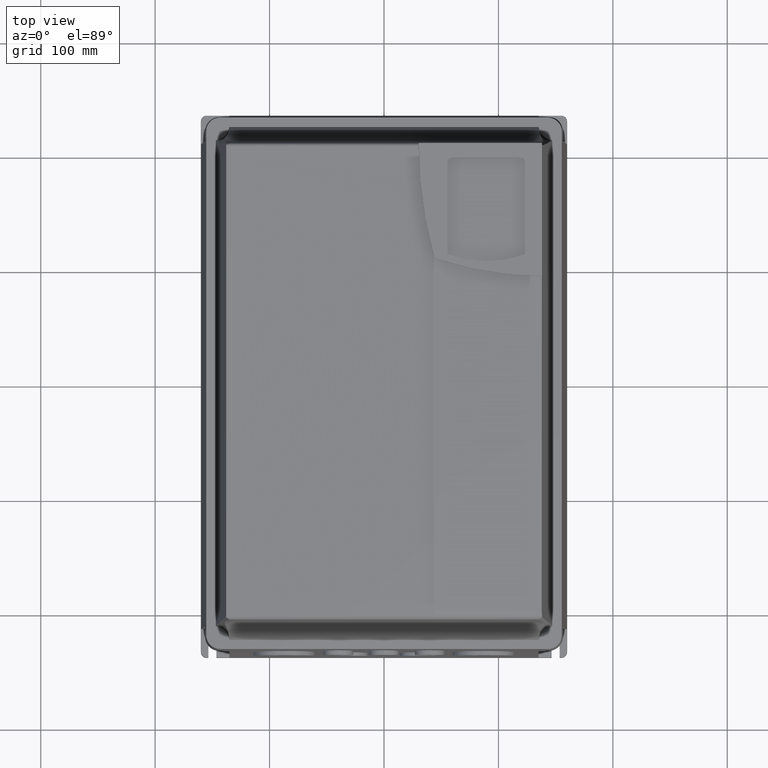
[diagram: clean part render]
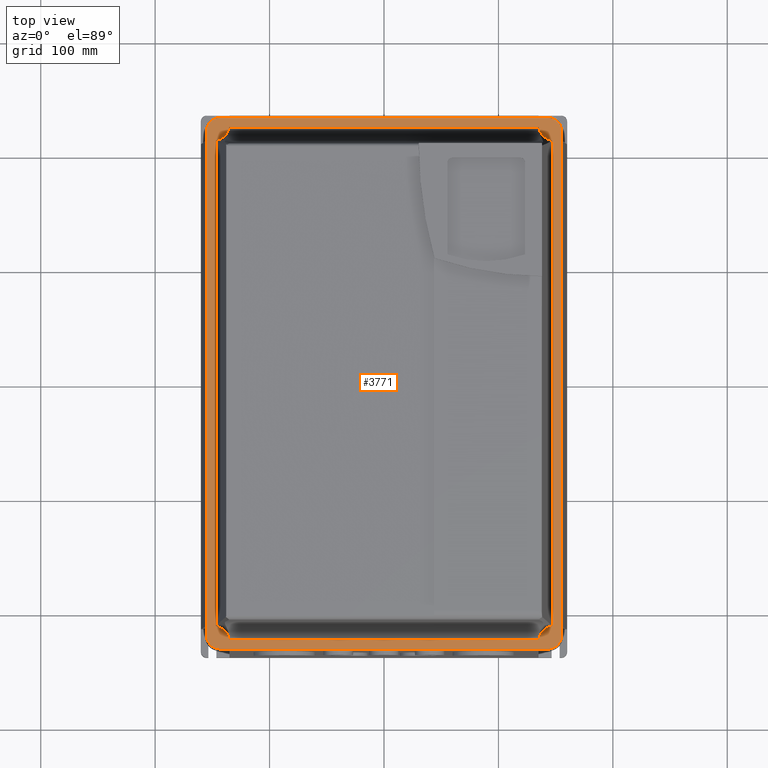
[diagram: same view with one face highlighted and labeled with its STEP entity id]
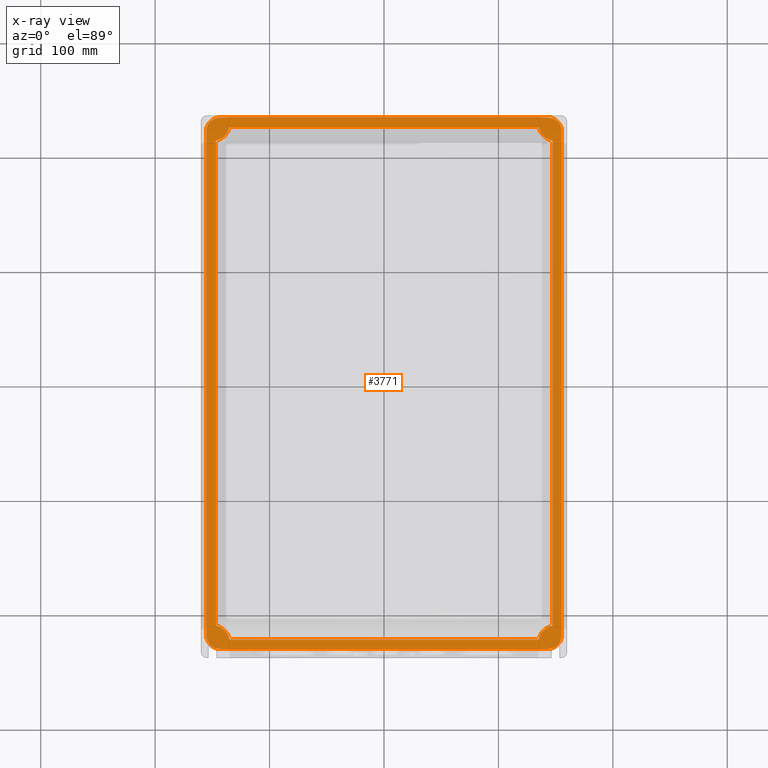
[diagram: x-ray of the same camera — body ghosted, the highlighted face saturated]
A machine part, top view. The second image highlights one B-rep face of the part: STEP entity #3771.
The next image is the same camera in x-ray: the body ghosted, the highlighted face saturated — about 0% of this face is hidden behind the body in this view.
In plain terms, the highlighted planar face has unit normal (-0, 0, -1).
Its self-contained STEP definition (entity closure, byte-faithful):
#50 = CARTESIAN_POINT ( 'NONE',  ( 5.870134323775302754, -8.898309321170588149, 7.070866141732304655 ) ) ;
#86 = PLANE ( 'NONE',  #3544 ) ;
#125 = CARTESIAN_POINT ( 'NONE',  ( -5.919603706733489012, 9.145979347624917821, 7.070866141732324195 ) ) ;
#132 = CARTESIAN_POINT ( 'NONE',  ( 6.115189488196325129, -8.671796319053838076, 7.070866141732283339 ) ) ;
#170 = CARTESIAN_POINT ( 'NONE',  ( 5.919606529659948713, -9.144077412350274159, 7.070866141732284227 ) ) ;
#255 = DIRECTION ( 'NONE',  ( -0.000000000000000000, 0.000000000000000000, -1.000000000000000000 ) ) ;
#265 = LINE ( 'NONE', #531, #3309 ) ;
#303 = CARTESIAN_POINT ( 'NONE',  ( -5.868558551732835582, 8.899348643540102799, 7.070866141732303767 ) ) ;
#357 = VECTOR ( 'NONE', #3875, 39.37007874015748143 ) ;
#387 = CARTESIAN_POINT ( 'NONE',  ( -6.115189488196325129, 8.950393057145165088, 7.070866141732324195 ) ) ;
#427 = VECTOR ( 'NONE', #2820, 39.37007874015748143 ) ;
#490 = ORIENTED_EDGE ( 'NONE', *, *, #1759, .F. ) ;
#531 = CARTESIAN_POINT ( 'NONE',  ( 5.802706648302605963, -8.824671478994547513, 7.070866141732284227 ) ) ;
#544 = ORIENTED_EDGE ( 'NONE', *, *, #3286, .F. ) ;
#550 = CARTESIAN_POINT ( 'NONE',  ( -5.783096516450406455, 8.354833402131196962, 7.070866141732313537 ) ) ;
#627 = DIRECTION ( 'NONE',  ( -0.000000000000000000, 0.000000000000000000, -1.000000000000000000 ) ) ;
#661 = ORIENTED_EDGE ( 'NONE', *, *, #720, .F. ) ;
#670 = AXIS2_PLACEMENT_3D ( 'NONE', #303, #627, #947 ) ;
#671 = ORIENTED_EDGE ( 'NONE', *, *, #1527, .F. ) ;
#720 = EDGE_CURVE ( 'NONE', #1810, #2594, #733, .T. ) ;
#733 = CIRCLE ( 'NONE', #1644, 0.5511811023622051886 ) ;
#781 = CARTESIAN_POINT ( 'NONE',  ( -5.783096516450406455, -11.81102362204724443, 7.070866141732324195 ) ) ;
#811 =( BOUNDED_CURVE ( )  B_SPLINE_CURVE ( 3, ( #3849, #2608, #3809, #3830 ),
 .UNSPECIFIED., .F., .F. ) 
 B_SPLINE_CURVE_WITH_KNOTS ( ( 4, 4 ),
 ( 2.358449336178278788, 3.928566196871626559 ),
 .UNSPECIFIED. ) 
 CURVE ( )  GEOMETRIC_REPRESENTATION_ITEM ( )  RATIONAL_B_SPLINE_CURVE ( ( 1.000000000000000000, 0.8048979786128696023, 0.8048979786128696023, 1.000000000000000000 ) ) 
 REPRESENTATION_ITEM ( '' )  );
#941 = CARTESIAN_POINT ( 'NONE',  ( 5.323439904853187521, 8.817823994351881467, 7.070866141732302879 ) ) ;
#947 = DIRECTION ( 'NONE',  ( 1.000000000000000000, 0.000000000000000000, 0.000000000000000000 ) ) ;
#955 = CARTESIAN_POINT ( 'NONE',  ( 5.802706648302605963, -11.81102362204724443, 7.070866141732284227 ) ) ;
#960 = CARTESIAN_POINT ( 'NONE',  ( 5.323894380343049626, -8.824671478994551066, 7.070866141732298438 ) ) ;
#970 = CARTESIAN_POINT ( 'NONE',  ( -6.115189488196322465, -8.948491734379379281, 7.070866141732325971 ) ) ;
#1018 = VERTEX_POINT ( 'NONE', #132 ) ;
#1030 = LINE ( 'NONE', #1688, #2916 ) ;
#1046 = DIRECTION ( 'NONE',  ( 0.000000000000000000, 1.000000000000000000, 0.000000000000000000 ) ) ;
#1057 = CIRCLE ( 'NONE', #2524, 0.5511811023622051886 ) ;
#1088 = ORIENTED_EDGE ( 'NONE', *, *, #3197, .T. ) ;
#1089 = CARTESIAN_POINT ( 'NONE',  ( -6.115189488196325129, 8.673698318070291791, 7.070866141732304655 ) ) ;
#1107 = ORIENTED_EDGE ( 'NONE', *, *, #3516, .F. ) ;
#1171 = DIRECTION ( 'NONE',  ( 1.000000000000000000, 0.000000000000000000, 0.000000000000000000 ) ) ;
#1202 = DIRECTION ( 'NONE',  ( 1.000000000000000000, -0.000000000000000000, 0.000000000000000000 ) ) ;
#1220 = VERTEX_POINT ( 'NONE', #1858 ) ;
#1222 = LINE ( 'NONE', #1562, #1247 ) ;
#1247 = VECTOR ( 'NONE', #1202, 39.37007874015748143 ) ;
#1249 = LINE ( 'NONE', #955, #427 ) ;
#1273 = CARTESIAN_POINT ( 'NONE',  ( -5.642914961523377571, -9.144077412350272382, 7.070866141732303767 ) ) ;
#1359 = LINE ( 'NONE', #2903, #357 ) ;
#1365 = CARTESIAN_POINT ( 'NONE',  ( -5.642909687761759940, 9.145979347624919598, 7.070866141732303767 ) ) ;
#1394 = EDGE_CURVE ( 'NONE', #3883, #1884, #3941, .T. ) ;
#1435 = CIRCLE ( 'NONE', #3624, 0.5511811023622051886 ) ;
#1444 = ORIENTED_EDGE ( 'NONE', *, *, #2425, .T. ) ;
#1478 = ORIENTED_EDGE ( 'NONE', *, *, #2772, .F. ) ;
#1498 = EDGE_CURVE ( 'NONE', #1018, #2492, #3138, .T. ) ;
#1520 = ORIENTED_EDGE ( 'NONE', *, *, #2144, .T. ) ;
#1527 = EDGE_CURVE ( 'NONE', #3059, #2122, #1435, .T. ) ;
#1554 = CARTESIAN_POINT ( 'NONE',  ( -5.783096516450406455, -8.355627433801915416, 7.070866141732313537 ) ) ;
#1562 = CARTESIAN_POINT ( 'NONE',  ( -11.81102362204724443, -9.144077412350272382, 7.070866141732283339 ) ) ;
#1608 = DIRECTION ( 'NONE',  ( -0.000000000000000000, -1.218881951183979088E-15, -1.000000000000000000 ) ) ;
#1609 = CARTESIAN_POINT ( 'NONE',  ( -5.323439904853121796, 8.817823994351616790, 7.070866141732914834 ) ) ;
#1631 = FACE_OUTER_BOUND ( 'NONE', #2632, .T. ) ;
#1644 = AXIS2_PLACEMENT_3D ( 'NONE', #3597, #255, #2047 ) ;
#1688 = CARTESIAN_POINT ( 'NONE',  ( -6.115189488196325129, -11.81102362204724443, 7.070866141732283339 ) ) ;
#1694 = ORIENTED_EDGE ( 'NONE', *, *, #3483, .F. ) ;
#1759 = EDGE_CURVE ( 'NONE', #3720, #3510, #3554, .T. ) ;
#1791 = EDGE_CURVE ( 'NONE', #1018, #3072, #2852, .T. ) ;
#1810 = VERTEX_POINT ( 'NONE', #2250 ) ;
#1817 = VERTEX_POINT ( 'NONE', #3153 ) ;
#1858 = CARTESIAN_POINT ( 'NONE',  ( 5.642909687761764381, 9.145979347624921374, 7.070866141732284227 ) ) ;
#1884 = VERTEX_POINT ( 'NONE', #550 ) ;
#1903 = CARTESIAN_POINT ( 'NONE',  ( 6.115189488196325129, -8.671796319053838076, 7.070866141732283339 ) ) ;
#1911 = ORIENTED_EDGE ( 'NONE', *, *, #1394, .F. ) ;
#1918 = FACE_BOUND ( 'NONE', #3826, .T. ) ;
#2043 = ORIENTED_EDGE ( 'NONE', *, *, #1791, .T. ) ;
#2047 = DIRECTION ( 'NONE',  ( 1.000000000000000000, -1.982541115402063729E-15, 0.000000000000000000 ) ) ;
#2067 = ORIENTED_EDGE ( 'NONE', *, *, #2072, .F. ) ;
#2072 = EDGE_CURVE ( 'NONE', #1884, #3059, #3212, .T. ) ;
#2099 = DIRECTION ( 'NONE',  ( -0.000000000000000000, 0.000000000000000000, -1.000000000000000000 ) ) ;
#2122 = VERTEX_POINT ( 'NONE', #3878 ) ;
#2144 = EDGE_CURVE ( 'NONE', #1817, #2492, #1222, .T. ) ;
#2250 = CARTESIAN_POINT ( 'NONE',  ( 5.802706648302605963, 8.352115480787860591, 7.070866141732293997 ) ) ;
#2364 = DIRECTION ( 'NONE',  ( -0.000000000000000000, -1.000000000000000000, -0.000000000000000000 ) ) ;
#2387 = CARTESIAN_POINT ( 'NONE',  ( -6.115189488196325129, -8.671796319053838076, 7.070866141732304655 ) ) ;
#2416 = DIRECTION ( 'NONE',  ( -1.000000000000000000, 0.000000000000000000, 3.496957458007497091E-15 ) ) ;
#2425 = EDGE_CURVE ( 'NONE', #1220, #3510, #1359, .T. ) ;
#2443 = CARTESIAN_POINT ( 'NONE',  ( 5.802706648302605963, -11.81102362204724443, 7.070866141732284227 ) ) ;
#2479 = DIRECTION ( 'NONE',  ( -1.982541115402063729E-15, -1.000000000000000000, 1.982541115402063729E-15 ) ) ;
#2492 = VERTEX_POINT ( 'NONE', #3252 ) ;
#2524 = AXIS2_PLACEMENT_3D ( 'NONE', #50, #1608, #2479 ) ;
#2582 = VECTOR ( 'NONE', #2364, 39.37007874015748143 ) ;
#2594 = VERTEX_POINT ( 'NONE', #941 ) ;
#2608 = CARTESIAN_POINT ( 'NONE',  ( 5.919603706733489901, 9.145979347624917821, 7.070866141732284227 ) ) ;
#2612 = EDGE_CURVE ( 'NONE', #2594, #3883, #3698, .T. ) ;
#2632 = EDGE_LOOP ( 'NONE', ( #2853, #2043, #2867, #1444, #490, #1088, #1107, #1520 ) ) ;
#2647 = VERTEX_POINT ( 'NONE', #960 ) ;
#2666 = CARTESIAN_POINT ( 'NONE',  ( -6.115189488196325129, 8.673698318070291791, 7.070866141732304655 ) ) ;
#2772 = EDGE_CURVE ( 'NONE', #2647, #2807, #1057, .T. ) ;
#2787 = CARTESIAN_POINT ( 'NONE',  ( -5.642909687761759940, 9.145979347624919598, 7.070866141732303767 ) ) ;
#2795 = EDGE_CURVE ( 'NONE', #1220, #3072, #811, .T. ) ;
#2807 = VERTEX_POINT ( 'NONE', #3572 ) ;
#2815 = CARTESIAN_POINT ( 'NONE',  ( -5.866982595675725776, -8.900387686861387593, 7.070866141732303767 ) ) ;
#2820 = DIRECTION ( 'NONE',  ( 0.000000000000000000, 1.000000000000000000, 0.000000000000000000 ) ) ;
#2825 = CARTESIAN_POINT ( 'NONE',  ( 6.115189488196325129, 8.673698318070295343, 7.070866141732283339 ) ) ;
#2838 = VECTOR ( 'NONE', #1046, 39.37007874015748143 ) ;
#2852 = LINE ( 'NONE', #3804, #2838 ) ;
#2853 = ORIENTED_EDGE ( 'NONE', *, *, #1498, .F. ) ;
#2867 = ORIENTED_EDGE ( 'NONE', *, *, #2795, .F. ) ;
#2878 =( BOUNDED_CURVE ( )  B_SPLINE_CURVE ( 3, ( #1273, #3727, #970, #3419 ),
 .UNSPECIFIED., .F., .F. ) 
 B_SPLINE_CURVE_WITH_KNOTS ( ( 4, 4 ),
 ( 2.366604795635871561, 3.936710497309707790 ),
 .UNSPECIFIED. ) 
 CURVE ( )  GEOMETRIC_REPRESENTATION_ITEM ( )  RATIONAL_B_SPLINE_CURVE ( ( 1.000000000000000000, 0.8049006079179323869, 0.8049006079179323869, 1.000000000000000000 ) ) 
 REPRESENTATION_ITEM ( '' )  );
#2903 = CARTESIAN_POINT ( 'NONE',  ( -11.81102362204724443, 9.145979347624921374, 7.070866141732283339 ) ) ;
#2916 = VECTOR ( 'NONE', #3261, 39.37007874015748143 ) ;
#3051 = DIRECTION ( 'NONE',  ( -3.496957458007497091E-15, 0.000000000000000000, -1.000000000000000000 ) ) ;
#3059 = VERTEX_POINT ( 'NONE', #1554 ) ;
#3072 = VERTEX_POINT ( 'NONE', #2825 ) ;
#3138 =( BOUNDED_CURVE ( )  B_SPLINE_CURVE ( 3, ( #1903, #3722, #170, #3433 ),
 .UNSPECIFIED., .F., .F. ) 
 B_SPLINE_CURVE_WITH_KNOTS ( ( 4, 4 ),
 ( 5.488067463459803008, 7.058173165133647231 ),
 .UNSPECIFIED. ) 
 CURVE ( )  GEOMETRIC_REPRESENTATION_ITEM ( )  RATIONAL_B_SPLINE_CURVE ( ( 1.000000000000000000, 0.8049006079179303885, 0.8049006079179303885, 1.000000000000000000 ) ) 
 REPRESENTATION_ITEM ( '' )  );
#3140 = DIRECTION ( 'NONE',  ( -1.000000000000000000, 0.000000000000000000, 3.496957458007497091E-15 ) ) ;
#3153 = CARTESIAN_POINT ( 'NONE',  ( -5.642914961523377571, -9.144077412350272382, 7.070866141732303767 ) ) ;
#3197 = EDGE_CURVE ( 'NONE', #3720, #3308, #1030, .T. ) ;
#3212 = LINE ( 'NONE', #781, #2582 ) ;
#3252 = CARTESIAN_POINT ( 'NONE',  ( 5.642914961523374906, -9.144077412350272382, 7.070866141732284227 ) ) ;
#3261 = DIRECTION ( 'NONE',  ( -0.000000000000000000, -1.000000000000000000, -0.000000000000000000 ) ) ;
#3286 = EDGE_CURVE ( 'NONE', #2122, #2647, #265, .T. ) ;
#3308 = VERTEX_POINT ( 'NONE', #2387 ) ;
#3309 = VECTOR ( 'NONE', #3589, 39.37007874015748143 ) ;
#3369 = VECTOR ( 'NONE', #2416, 39.37007874015748143 ) ;
#3419 = CARTESIAN_POINT ( 'NONE',  ( -6.115189488196325129, -8.671796319053838076, 7.070866141732304655 ) ) ;
#3433 = CARTESIAN_POINT ( 'NONE',  ( 5.642914961523374906, -9.144077412350272382, 7.070866141732284227 ) ) ;
#3483 = EDGE_CURVE ( 'NONE', #2807, #1810, #1249, .T. ) ;
#3510 = VERTEX_POINT ( 'NONE', #2787 ) ;
#3516 = EDGE_CURVE ( 'NONE', #1817, #3308, #2878, .T. ) ;
#3544 = AXIS2_PLACEMENT_3D ( 'NONE', #2443, #3051, #3140 ) ;
#3554 =( BOUNDED_CURVE ( )  B_SPLINE_CURVE ( 3, ( #1089, #387, #125, #1365 ),
 .UNSPECIFIED., .F., .F. ) 
 B_SPLINE_CURVE_WITH_KNOTS ( ( 4, 4 ),
 ( 5.496211763897611569, 7.066328624590973106 ),
 .UNSPECIFIED. ) 
 CURVE ( )  GEOMETRIC_REPRESENTATION_ITEM ( )  RATIONAL_B_SPLINE_CURVE ( ( 1.000000000000000000, 0.8048979786128663827, 0.8048979786128663827, 1.000000000000000000 ) ) 
 REPRESENTATION_ITEM ( '' )  );
#3572 = CARTESIAN_POINT ( 'NONE',  ( 5.802706648302605963, -8.351268083070971571, 7.070866141732293997 ) ) ;
#3589 = DIRECTION ( 'NONE',  ( 1.000000000000000000, -0.000000000000000000, -3.496957458007497091E-15 ) ) ;
#3593 = ORIENTED_EDGE ( 'NONE', *, *, #2612, .F. ) ;
#3597 = CARTESIAN_POINT ( 'NONE',  ( 5.868558551732886208, 8.899348643540102799, 7.070866141732303767 ) ) ;
#3624 = AXIS2_PLACEMENT_3D ( 'NONE', #2815, #2099, #1171 ) ;
#3654 = CARTESIAN_POINT ( 'NONE',  ( 5.802706648302605963, 8.817823994351879691, 7.070866141732284227 ) ) ;
#3698 = LINE ( 'NONE', #3654, #3369 ) ;
#3720 = VERTEX_POINT ( 'NONE', #2666 ) ;
#3722 = CARTESIAN_POINT ( 'NONE',  ( 6.115189488196325129, -8.948491734379381057, 7.070866141732284227 ) ) ;
#3727 = CARTESIAN_POINT ( 'NONE',  ( -5.919606529659948713, -9.144077412350270606, 7.070866141732325971 ) ) ;
#3771 = ADVANCED_FACE ( 'NONE', ( #1631, #1918 ), #86, .F. ) ;
#3804 = CARTESIAN_POINT ( 'NONE',  ( 6.115189488196325129, -11.81102362204724443, 7.070866141732283339 ) ) ;
#3809 = CARTESIAN_POINT ( 'NONE',  ( 6.115189488196325129, 8.950393057145166864, 7.070866141732283339 ) ) ;
#3826 = EDGE_LOOP ( 'NONE', ( #1911, #3593, #661, #1694, #1478, #544, #671, #2067 ) ) ;
#3830 = CARTESIAN_POINT ( 'NONE',  ( 6.115189488196325129, 8.673698318070295343, 7.070866141732283339 ) ) ;
#3849 = CARTESIAN_POINT ( 'NONE',  ( 5.642909687761764381, 9.145979347624921374, 7.070866141732284227 ) ) ;
#3875 = DIRECTION ( 'NONE',  ( -1.000000000000000000, -0.000000000000000000, -0.000000000000000000 ) ) ;
#3878 = CARTESIAN_POINT ( 'NONE',  ( -5.321026861694040377, -8.824671478994545737, 7.070866141732305543 ) ) ;
#3883 = VERTEX_POINT ( 'NONE', #1609 ) ;
#3941 = CIRCLE ( 'NONE', #670, 0.5511811023622051886 ) ;